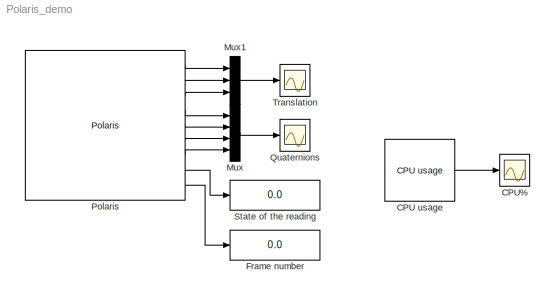
MODEL Polaris_demo
KIND model
BLOCK [Reference] CPU usage  REF=rpi_blkst/CPU usage  (lib defined in mdl_5f9edbe601a8, slx_830431f926a7)
  Ports = [0, 1]
  SID = 8
  SourceBlock = rpi_blkst/CPU usage
  SourceProductName = RPI Blockset
  SourceType = Target CPU usage
  rpi_mask_Ts = 0.01
BLOCK [Scope] CPU%
  Floating = off
  NumInputPorts = 1
  Ports = [1]
  SID = 10
  ScopeSpecificationString = C++SS(StrPVP('Location','[1, 48, 1281, 879]'),StrPVP('Open','off'),MxPVP('AxesTitles',53,'struct(''axes1'',''%<SignalLabel>'')'),StrPVP('YMin','2.5'),StrPVP('YMax','35'),StrPVP('SaveName','ScopeData2'),StrPVP('DataFormat','StructureWithTime'),StrPVP('BlockParamSampleTime','0'),StrPVP('LimitDataPoints','on'),StrPVP('Decimation','1'),StrPVP('BlockParamSampleInput','off'))
BLOCK [Display] Frame number
  Decimation = 1
  Ports = [1]
  SID = 2
BLOCK [Mux] Mux
  DisplayOption = bar
  Ports = [4, 1]
  SID = 4
BLOCK [Mux] Mux1
  DisplayOption = bar
  Inputs = 3
  Ports = [3, 1]
  SID = 6
BLOCK [Reference] Polaris  REF=rpi_blkst/Polaris  (lib defined in mdl_5f9edbe601a8, slx_830431f926a7)
  Ports = [0, 9]
  SID = 1
  SourceBlock = rpi_blkst/Polaris
  SourceProductName = RPI Blockset
  SourceType = NDI Polaris
  rpi_mask_Ts = 0.01
BLOCK [Scope] Quaternions
  Floating = off
  NumInputPorts = 1
  Ports = [1]
  SID = 5
  ScopeSpecificationString = C++SS(StrPVP('Location','[937, 526, 1261, 765]'),StrPVP('Open','off'),MxPVP('AxesTitles',53,'struct(''axes1'',''%<SignalLabel>'')'),StrPVP('YMin','-1'),StrPVP('YMax','1'),StrPVP('DataFormat','StructureWithTime'),StrPVP('BlockParamSampleTime','0'),StrPVP('LimitDataPoints','on'),StrPVP('Decimation','1'),StrPVP('BlockParamSampleInput','off'))
BLOCK [Display] State of the reading
  Decimation = 1
  Ports = [1]
  SID = 3
BLOCK [Scope] Translation
  Floating = off
  NumInputPorts = 1
  Ports = [1]
  SID = 7
  ScopeSpecificationString = C++SS(StrPVP('Location','[938, 220, 1262, 459]'),StrPVP('Open','off'),MxPVP('AxesTitles',53,'struct(''axes1'',''%<SignalLabel>'')'),StrPVP('YMin','-900'),StrPVP('YMax','200'),StrPVP('SaveName','ScopeData1'),StrPVP('DataFormat','StructureWithTime'),StrPVP('BlockParamSampleTime','0'),StrPVP('LimitDataPoints','on'),StrPVP('Decimation','1'),StrPVP('BlockParamSampleInput','off'))
LINE CPU usage:1 -> CPU%:1
LINE Mux1:1 -> Translation:1
LINE Mux:1 -> Quaternions:1
LINE Polaris:1 -> Mux1:1
LINE Polaris:2 -> Mux1:2
LINE Polaris:3 -> Mux1:3
LINE Polaris:4 -> Mux:1
LINE Polaris:5 -> Mux:2
LINE Polaris:6 -> Mux:3
LINE Polaris:7 -> Mux:4
LINE Polaris:8 -> State of the reading:1
LINE Polaris:9 -> Frame number:1
